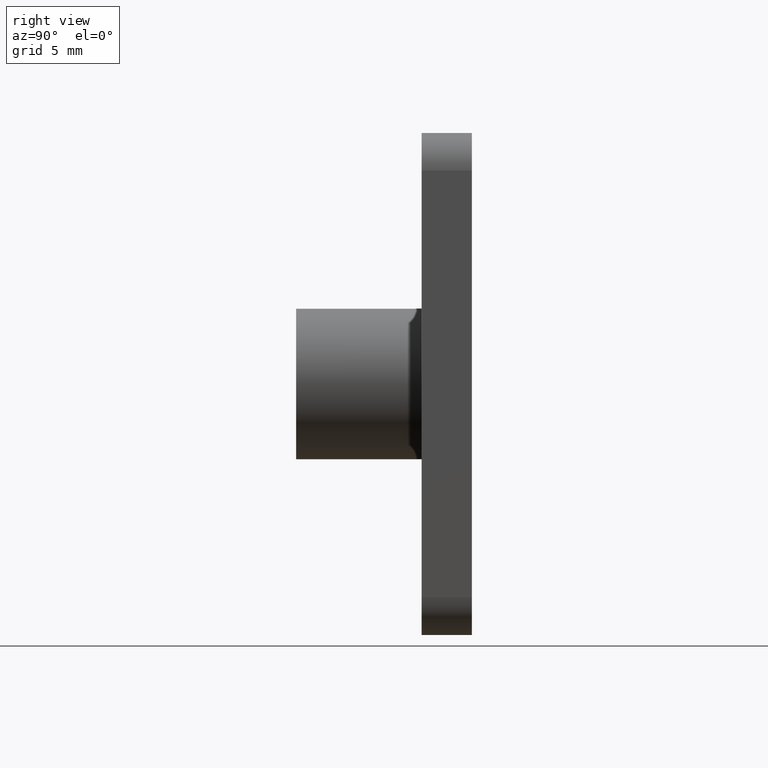
[diagram: clean part render]
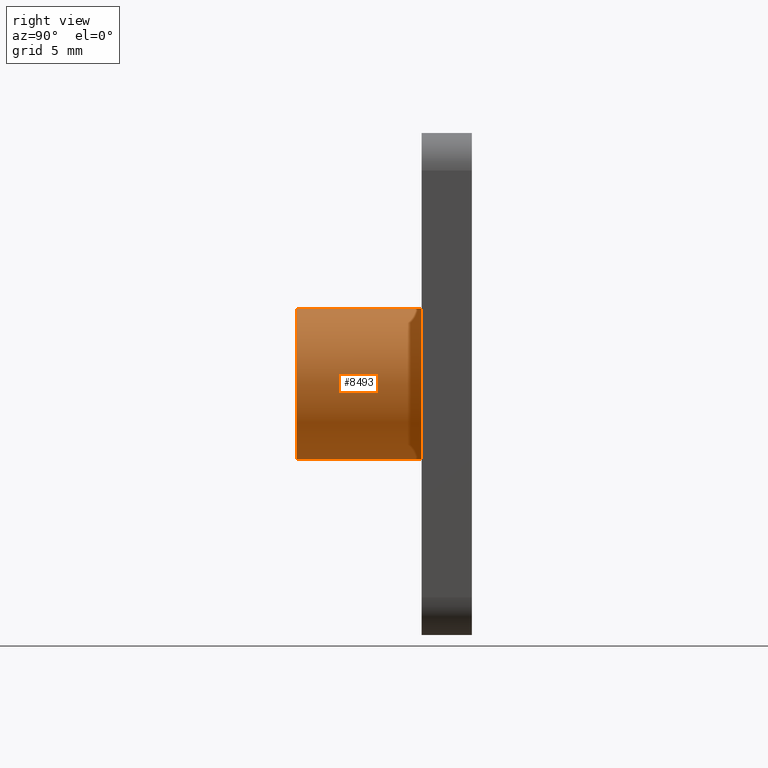
[diagram: same view with one face highlighted and labeled with its STEP entity id]
A machine part, right view. The second image highlights one B-rep face of the part: STEP entity #8493.
In plain terms, the highlighted cylindrical surface (partial cylindrical patch) has radius 6 mm, axis along (-0, 1, -0).
Its self-contained STEP definition (entity closure, byte-faithful):
#1977 = EDGE_CURVE ( 'NONE', #8859, #5510, #5659, .T. ) ;
#2019 = DIRECTION ( 'NONE',  ( 0.0000000000000000000, -1.000000000000000000, 0.0000000000000000000 ) ) ;
#2218 = CARTESIAN_POINT ( 'NONE',  ( 7.347880794884120700E-016, -10.00000000000000000, -6.000000000000000900 ) ) ;
#2275 = AXIS2_PLACEMENT_3D ( 'NONE', #3625, #10922, #15512 ) ;
#2455 = CARTESIAN_POINT ( 'NONE',  ( 0.0000000000000000000, -10.00000000000000000, 6.000000000000000900 ) ) ;
#2695 = FACE_OUTER_BOUND ( 'NONE', #17891, .T. ) ;
#2876 = CARTESIAN_POINT ( 'NONE',  ( 7.347880794884120700E-016, 0.0000000000000000000, -6.000000000000000900 ) ) ;
#2941 = ORIENTED_EDGE ( 'NONE', *, *, #3536, .T. ) ;
#3536 = EDGE_CURVE ( 'NONE', #17839, #8859, #6395, .T. ) ;
#3625 = CARTESIAN_POINT ( 'NONE',  ( 0.0000000000000000000, -10.00000000000000000, 0.0000000000000000000 ) ) ;
#5510 = VERTEX_POINT ( 'NONE', #15511 ) ;
#5659 = CIRCLE ( 'NONE', #8342, 6.000000000000000900 ) ;
#5764 = LINE ( 'NONE', #2455, #9156 ) ;
#6395 = LINE ( 'NONE', #12222, #15616 ) ;
#6464 = ORIENTED_EDGE ( 'NONE', *, *, #17504, .F. ) ;
#7236 = DIRECTION ( 'NONE',  ( -0.0000000000000000000, 1.000000000000000000, -0.0000000000000000000 ) ) ;
#8023 = ORIENTED_EDGE ( 'NONE', *, *, #1977, .T. ) ;
#8342 = AXIS2_PLACEMENT_3D ( 'NONE', #15952, #8651, #17278 ) ;
#8493 = ADVANCED_FACE ( 'NONE', ( #2695 ), #16072, .T. ) ;
#8651 = DIRECTION ( 'NONE',  ( -0.0000000000000000000, -1.000000000000000000, -0.0000000000000000000 ) ) ;
#8859 = VERTEX_POINT ( 'NONE', #2876 ) ;
#9156 = VECTOR ( 'NONE', #7236, 1000.000000000000000 ) ;
#10922 = DIRECTION ( 'NONE',  ( -0.0000000000000000000, 1.000000000000000000, -0.0000000000000000000 ) ) ;
#12031 = DIRECTION ( 'NONE',  ( 0.0000000000000000000, 0.0000000000000000000, -1.000000000000000000 ) ) ;
#12222 = CARTESIAN_POINT ( 'NONE',  ( 7.347880794884120700E-016, -10.00000000000000000, -6.000000000000000900 ) ) ;
#13301 = EDGE_CURVE ( 'NONE', #17839, #14487, #18019, .T. ) ;
#13958 = AXIS2_PLACEMENT_3D ( 'NONE', #14986, #2019, #12031 ) ;
#14120 = ORIENTED_EDGE ( 'NONE', *, *, #13301, .F. ) ;
#14487 = VERTEX_POINT ( 'NONE', #16121 ) ;
#14986 = CARTESIAN_POINT ( 'NONE',  ( 0.0000000000000000000, -10.00000000000000000, 0.0000000000000000000 ) ) ;
#15511 = CARTESIAN_POINT ( 'NONE',  ( 0.0000000000000000000, 0.0000000000000000000, 6.000000000000000900 ) ) ;
#15512 = DIRECTION ( 'NONE',  ( 0.0000000000000000000, 0.0000000000000000000, 1.000000000000000000 ) ) ;
#15616 = VECTOR ( 'NONE', #16289, 1000.000000000000000 ) ;
#15952 = CARTESIAN_POINT ( 'NONE',  ( 0.0000000000000000000, 0.0000000000000000000, 0.0000000000000000000 ) ) ;
#16072 = CYLINDRICAL_SURFACE ( 'NONE', #2275, 6.000000000000000900 ) ;
#16121 = CARTESIAN_POINT ( 'NONE',  ( 0.0000000000000000000, -10.00000000000000000, 6.000000000000000900 ) ) ;
#16289 = DIRECTION ( 'NONE',  ( -0.0000000000000000000, 1.000000000000000000, -0.0000000000000000000 ) ) ;
#17278 = DIRECTION ( 'NONE',  ( 0.0000000000000000000, 0.0000000000000000000, 1.000000000000000000 ) ) ;
#17504 = EDGE_CURVE ( 'NONE', #14487, #5510, #5764, .T. ) ;
#17839 = VERTEX_POINT ( 'NONE', #2218 ) ;
#17891 = EDGE_LOOP ( 'NONE', ( #14120, #2941, #8023, #6464 ) ) ;
#18019 = CIRCLE ( 'NONE', #13958, 6.000000000000000900 ) ;